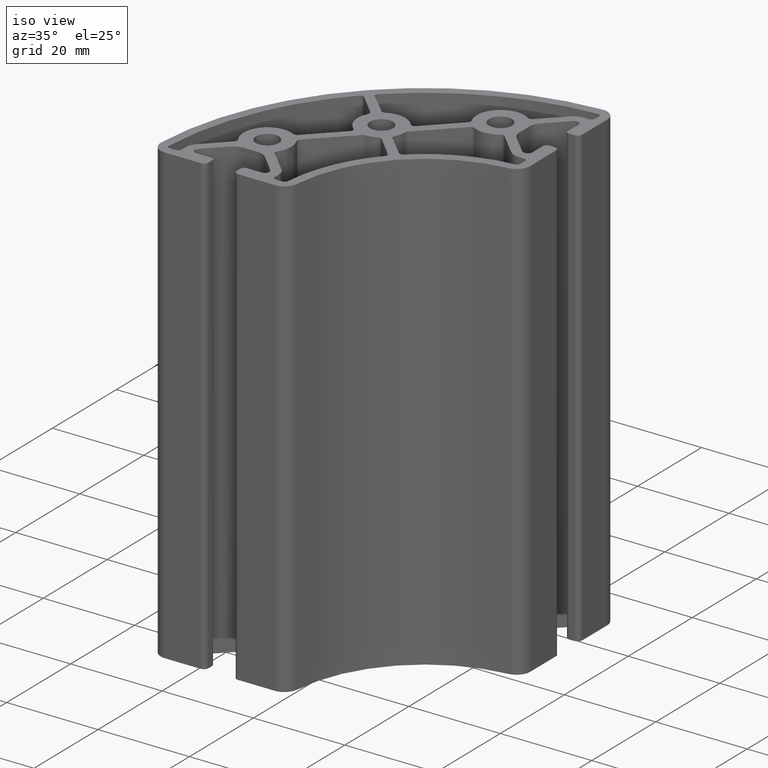
[diagram: clean part render]
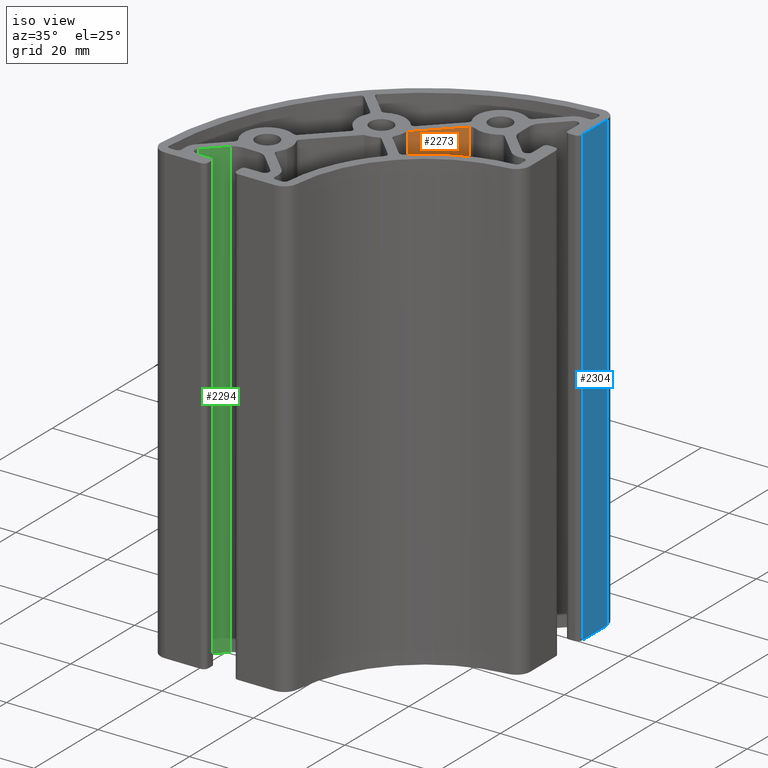
[diagram: same view with three faces highlighted in distinct colors, each labeled with its STEP entity id]
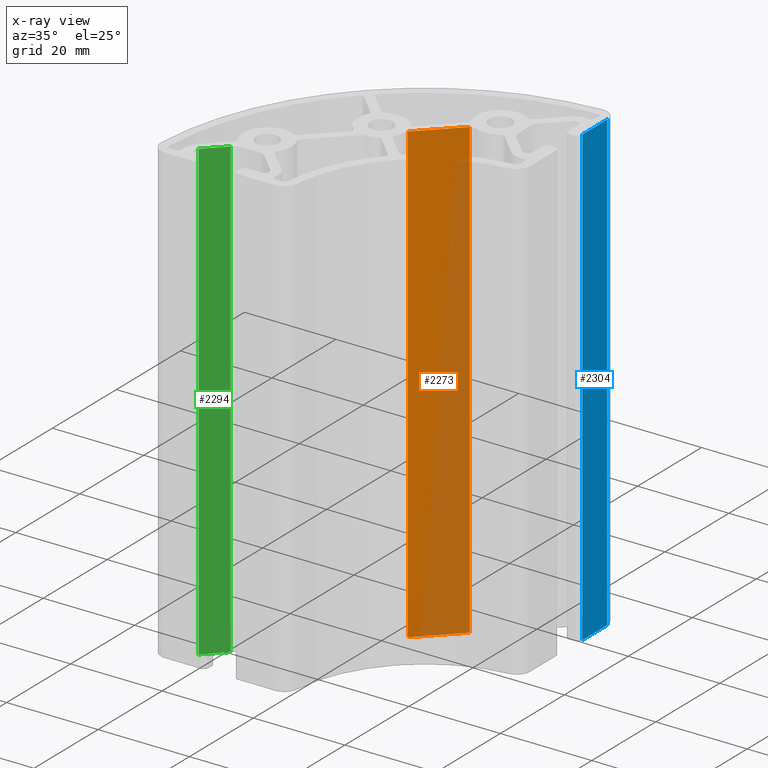
[diagram: x-ray of the same camera — body ghosted, the three highlighted faces saturated]
A machine part, iso view with three faces highlighted in distinct colors.
The next image is the same camera in x-ray (body ghosted, the three faces saturated) — at least one of them is partly hidden behind the body in this view.
Their STEP definitions:

[orange] entity #2273 — the highlighted planar face has unit normal (-0.7071, 0.7071, 0).
#335=FACE_OUTER_BOUND('',#453,.T.);
#453=EDGE_LOOP('',(#1750,#1751,#1752,#1753));
#626=LINE('',#3753,#815);
#627=LINE('',#3757,#816);
#628=LINE('',#3759,#817);
#629=LINE('',#3760,#818);
#815=VECTOR('',#3043,100.);
#816=VECTOR('',#3048,11.2604719600341);
#817=VECTOR('',#3049,100.);
#818=VECTOR('',#3050,11.2604719600341);
#1035=VERTEX_POINT('',#3750);
#1036=VERTEX_POINT('',#3752);
#1037=VERTEX_POINT('',#3756);
#1038=VERTEX_POINT('',#3758);
#1335=EDGE_CURVE('',#1035,#1036,#626,.T.);
#1337=EDGE_CURVE('',#1037,#1035,#627,.T.);
#1338=EDGE_CURVE('',#1037,#1038,#628,.T.);
#1339=EDGE_CURVE('',#1036,#1038,#629,.T.);
#1750=ORIENTED_EDGE('',*,*,#1337,.F.);
#1751=ORIENTED_EDGE('',*,*,#1338,.T.);
#1752=ORIENTED_EDGE('',*,*,#1339,.F.);
#1753=ORIENTED_EDGE('',*,*,#1335,.F.);
#2183=PLANE('',#2493);
#2273=ADVANCED_FACE('',(#335),#2183,.F.);
#2493=AXIS2_PLACEMENT_3D('',#3755,#3046,#3047);
#3043=DIRECTION('',(0.,0.,1.));
#3046=DIRECTION('center_axis',(-0.70710678118655,0.707106781186545,0.));
#3047=DIRECTION('ref_axis',(-0.707106781186545,-0.70710678118655,0.));
#3048=DIRECTION('',(-0.707106781186545,-0.70710678118655,0.));
#3049=DIRECTION('',(0.,0.,1.));
#3050=DIRECTION('',(0.707106781186545,0.70710678118655,0.));
#3750=CARTESIAN_POINT('',(5.48274103454127,0.42533100967387,0.));
#3752=CARTESIAN_POINT('',(5.48274103454127,0.425331009673871,100.));
#3753=CARTESIAN_POINT('',(5.48274103454127,0.42533100967387,0.));
#3755=CARTESIAN_POINT('Origin',(13.4450971168423,8.38768709197496,0.));
#3756=CARTESIAN_POINT('',(13.4450971168423,8.38768709197496,0.));
#3757=CARTESIAN_POINT('',(7.98658657248209,2.92917654761471,0.));
#3758=CARTESIAN_POINT('',(13.4450971168423,8.38768709197496,100.));
#3759=CARTESIAN_POINT('',(13.4450971168423,8.38768709197496,0.));
#3760=CARTESIAN_POINT('',(7.98658657248209,2.92917654761471,100.));

[blue] entity #2304 — the highlighted planar face has unit normal (1, -0, 0).
#366=FACE_OUTER_BOUND('',#487,.T.);
#487=EDGE_LOOP('',(#1868,#1869,#1870,#1871));
#676=LINE('',#3937,#865);
#677=LINE('',#3940,#866);
#678=LINE('',#3942,#867);
#679=LINE('',#3943,#868);
#865=VECTOR('',#3237,100.);
#866=VECTOR('',#3240,7.82107609076099);
#867=VECTOR('',#3241,7.82107609076099);
#868=VECTOR('',#3242,100.);
#1097=VERTEX_POINT('',#3933);
#1098=VERTEX_POINT('',#3935);
#1099=VERTEX_POINT('',#3939);
#1100=VERTEX_POINT('',#3941);
#1426=EDGE_CURVE('',#1097,#1098,#676,.T.);
#1427=EDGE_CURVE('',#1099,#1097,#677,.T.);
#1428=EDGE_CURVE('',#1100,#1098,#678,.T.);
#1429=EDGE_CURVE('',#1099,#1100,#679,.T.);
#1868=ORIENTED_EDGE('',*,*,#1427,.T.);
#1869=ORIENTED_EDGE('',*,*,#1426,.T.);
#1870=ORIENTED_EDGE('',*,*,#1428,.F.);
#1871=ORIENTED_EDGE('',*,*,#1429,.F.);
#2194=PLANE('',#2564);
#2304=ADVANCED_FACE('',(#366),#2194,.T.);
#2564=AXIS2_PLACEMENT_3D('',#3938,#3238,#3239);
#3237=DIRECTION('',(0.,0.,1.));
#3238=DIRECTION('center_axis',(1.,-1.58987046430741E-14,0.));
#3239=DIRECTION('ref_axis',(1.59872115546023E-14,1.,0.));
#3240=DIRECTION('',(1.58987046430741E-14,1.,0.));
#3241=DIRECTION('',(1.58987046430741E-14,1.,0.));
#3242=DIRECTION('',(0.,0.,1.));
#3933=CARTESIAN_POINT('',(31.8188746287481,25.1014437144389,0.));
#3935=CARTESIAN_POINT('',(31.8188746287481,25.1014437144389,100.));
#3937=CARTESIAN_POINT('',(31.8188746287481,25.1014437144389,0.));
#3938=CARTESIAN_POINT('Origin',(31.818874628748,17.2803676236779,0.));
#3939=CARTESIAN_POINT('',(31.818874628748,17.2803676236779,0.));
#3940=CARTESIAN_POINT('',(31.818874628748,17.2803676236779,0.));
#3941=CARTESIAN_POINT('',(31.818874628748,17.2803676236779,100.));
#3942=CARTESIAN_POINT('',(31.818874628748,17.2803676236779,100.));
#3943=CARTESIAN_POINT('',(31.818874628748,17.2803676236779,0.));

[green] entity #2294 — the highlighted planar face has unit normal (0.7071, -0.7071, 0).
#356=FACE_OUTER_BOUND('',#477,.T.);
#477=EDGE_LOOP('',(#1828,#1829,#1830,#1831));
#658=LINE('',#3877,#847);
#659=LINE('',#3880,#848);
#660=LINE('',#3882,#849);
#661=LINE('',#3883,#850);
#847=VECTOR('',#3175,100.);
#848=VECTOR('',#3178,5.83515937845802);
#849=VECTOR('',#3179,5.83515937845802);
#850=VECTOR('',#3180,100.);
#1077=VERTEX_POINT('',#3873);
#1078=VERTEX_POINT('',#3875);
#1079=VERTEX_POINT('',#3879);
#1080=VERTEX_POINT('',#3881);
#1396=EDGE_CURVE('',#1077,#1078,#658,.T.);
#1397=EDGE_CURVE('',#1079,#1077,#659,.T.);
#1398=EDGE_CURVE('',#1080,#1078,#660,.T.);
#1399=EDGE_CURVE('',#1079,#1080,#661,.T.);
#1828=ORIENTED_EDGE('',*,*,#1397,.T.);
#1829=ORIENTED_EDGE('',*,*,#1396,.T.);
#1830=ORIENTED_EDGE('',*,*,#1398,.F.);
#1831=ORIENTED_EDGE('',*,*,#1399,.F.);
#2190=PLANE('',#2542);
#2294=ADVANCED_FACE('',(#356),#2190,.T.);
#2542=AXIS2_PLACEMENT_3D('',#3878,#3176,#3177);
#3175=DIRECTION('',(0.,0.,1.));
#3176=DIRECTION('center_axis',(0.707106454311478,-0.707107108061466,0.));
#3177=DIRECTION('ref_axis',(0.707107108061466,0.707106454311478,0.));
#3178=DIRECTION('',(0.707107108061466,0.707106454311478,0.));
#3179=DIRECTION('',(0.707107108061466,0.707106454311478,0.));
#3180=DIRECTION('',(0.,0.,1.));
#3873=CARTESIAN_POINT('',(-16.9061296396127,-22.9487166539741,0.));
#3875=CARTESIAN_POINT('',(-16.9061296396127,-22.9487166539741,100.));
#3877=CARTESIAN_POINT('',(-16.9061296396127,-22.9487166539741,0.));
#3878=CARTESIAN_POINT('Origin',(-21.0322123127919,-27.0747955124179,0.));
#3879=CARTESIAN_POINT('',(-21.0322123127919,-27.0747955124179,0.));
#3880=CARTESIAN_POINT('',(-21.0322123127919,-27.0747955124179,0.));
#3881=CARTESIAN_POINT('',(-21.0322123127919,-27.0747955124179,100.));
#3882=CARTESIAN_POINT('',(-21.0322123127919,-27.0747955124179,100.));
#3883=CARTESIAN_POINT('',(-21.0322123127919,-27.0747955124179,0.));